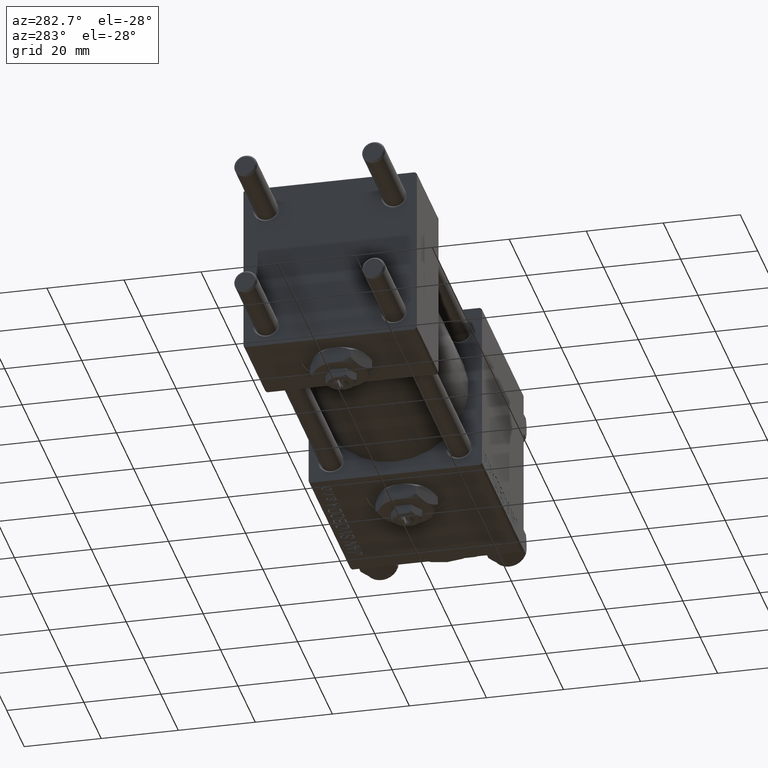
[diagram: clean part render]
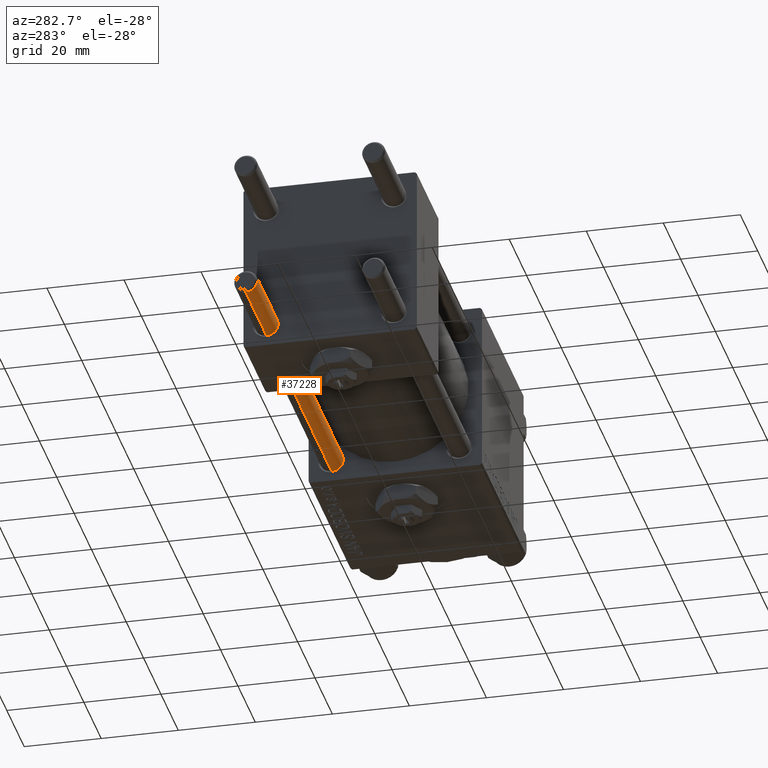
[diagram: same view with one face highlighted and labeled with its STEP entity id]
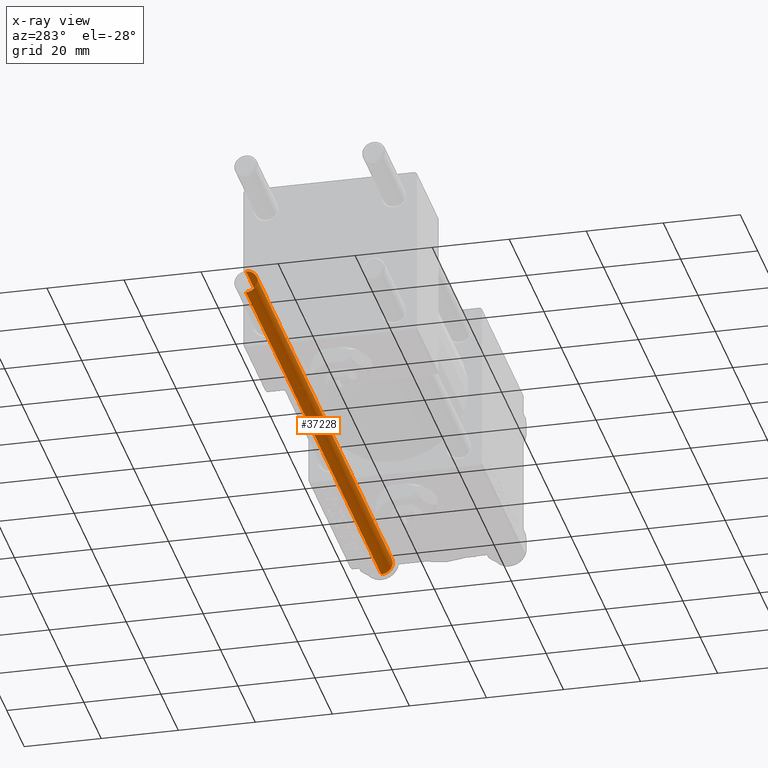
[diagram: x-ray of the same camera — body ghosted, the highlighted face saturated]
A machine part, auxiliary view. The second image highlights one B-rep face of the part: STEP entity #37228.
The next image is the same camera in x-ray: the body ghosted, the highlighted face saturated — about 0% of this face is hidden behind the body in this view.
In plain terms, the highlighted cylindrical surface (edge-blend (fillet) strip) has radius 3 mm, axis along (1, 0, -0).
Its self-contained STEP definition (entity closure, byte-faithful):
#1107 = VERTEX_POINT ( 'NONE', #43008 ) ;
#1347 = LINE ( 'NONE', #17363, #19854 ) ;
#1580 = CARTESIAN_POINT ( 'NONE',  ( -3.000000000000000444, 0.000000000000000000, 157.0000000000000000 ) ) ;
#1702 = CIRCLE ( 'NONE', #34353, 3.000000000000000444 ) ;
#2011 = DIRECTION ( 'NONE',  ( -0.000000000000000000, -0.000000000000000000, -1.000000000000000000 ) ) ;
#2864 = ORIENTED_EDGE ( 'NONE', *, *, #46459, .T. ) ;
#4798 = EDGE_CURVE ( 'NONE', #13026, #44196, #8339, .T. ) ;
#6949 = EDGE_CURVE ( 'NONE', #48680, #1107, #1702, .T. ) ;
#8339 = CIRCLE ( 'NONE', #15037, 3.000000000000000444 ) ;
#8429 = DIRECTION ( 'NONE',  ( -0.000000000000000000, -0.000000000000000000, -1.000000000000000000 ) ) ;
#12513 = ORIENTED_EDGE ( 'NONE', *, *, #6949, .T. ) ;
#12578 = CARTESIAN_POINT ( 'NONE',  ( 3.000000000000000444, 3.673940397442060361E-16, 156.5000000000000284 ) ) ;
#13026 = VERTEX_POINT ( 'NONE', #12578 ) ;
#15037 = AXIS2_PLACEMENT_3D ( 'NONE', #50641, #23353, #27537 ) ;
#17363 = CARTESIAN_POINT ( 'NONE',  ( 3.000000000000000444, 3.673940397442060361E-16, 157.0000000000000000 ) ) ;
#17516 = CYLINDRICAL_SURFACE ( 'NONE', #50133, 3.000000000000000444 ) ;
#18474 = CARTESIAN_POINT ( 'NONE',  ( -3.000000000000000444, 0.000000000000000000, 156.5000000000000284 ) ) ;
#19854 = VECTOR ( 'NONE', #36495, 1000.000000000000000 ) ;
#21448 = CARTESIAN_POINT ( 'NONE',  ( 0.000000000000000000, 0.000000000000000000, 157.0000000000000000 ) ) ;
#23353 = DIRECTION ( 'NONE',  ( 0.000000000000000000, 0.000000000000000000, -1.000000000000000000 ) ) ;
#27537 = DIRECTION ( 'NONE',  ( 1.000000000000000000, 0.000000000000000000, 0.000000000000000000 ) ) ;
#28487 = DIRECTION ( 'NONE',  ( -0.000000000000000000, -0.000000000000000000, 1.000000000000000000 ) ) ;
#30631 = CARTESIAN_POINT ( 'NONE',  ( -3.000000000000000444, 0.000000000000000000, 0.4999999999999726885 ) ) ;
#33006 = EDGE_CURVE ( 'NONE', #13026, #1107, #1347, .T. ) ;
#33070 = LINE ( 'NONE', #1580, #42495 ) ;
#34353 = AXIS2_PLACEMENT_3D ( 'NONE', #40789, #28487, #48157 ) ;
#36495 = DIRECTION ( 'NONE',  ( -0.000000000000000000, -0.000000000000000000, -1.000000000000000000 ) ) ;
#37228 = ADVANCED_FACE ( 'NONE', ( #45571 ), #17516, .T. ) ;
#38062 = ORIENTED_EDGE ( 'NONE', *, *, #4798, .T. ) ;
#38083 = EDGE_LOOP ( 'NONE', ( #45058, #38062, #2864, #12513 ) ) ;
#40789 = CARTESIAN_POINT ( 'NONE',  ( 0.000000000000000000, 0.000000000000000000, 0.4999999999999726885 ) ) ;
#42495 = VECTOR ( 'NONE', #8429, 1000.000000000000000 ) ;
#43008 = CARTESIAN_POINT ( 'NONE',  ( 3.000000000000000444, 3.673940397442060361E-16, 0.4999999999999726885 ) ) ;
#44196 = VERTEX_POINT ( 'NONE', #18474 ) ;
#45058 = ORIENTED_EDGE ( 'NONE', *, *, #33006, .F. ) ;
#45571 = FACE_OUTER_BOUND ( 'NONE', #38083, .T. ) ;
#46086 = DIRECTION ( 'NONE',  ( -1.000000000000000000, 0.000000000000000000, 0.000000000000000000 ) ) ;
#46459 = EDGE_CURVE ( 'NONE', #44196, #48680, #33070, .T. ) ;
#48157 = DIRECTION ( 'NONE',  ( 1.000000000000000000, 0.000000000000000000, 0.000000000000000000 ) ) ;
#48680 = VERTEX_POINT ( 'NONE', #30631 ) ;
#50133 = AXIS2_PLACEMENT_3D ( 'NONE', #21448, #2011, #46086 ) ;
#50641 = CARTESIAN_POINT ( 'NONE',  ( 0.000000000000000000, 0.000000000000000000, 156.5000000000000284 ) ) ;